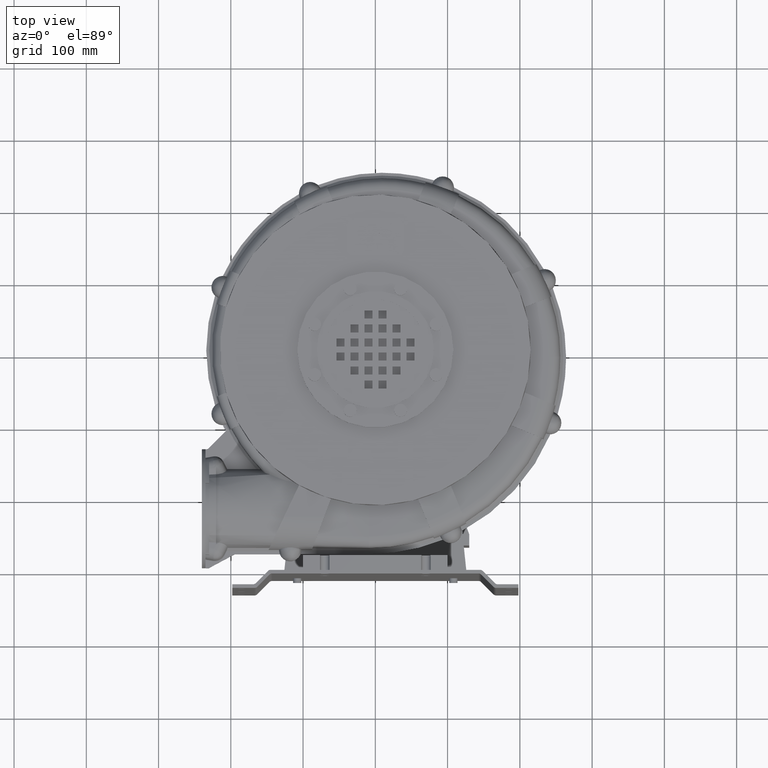
[diagram: clean part render]
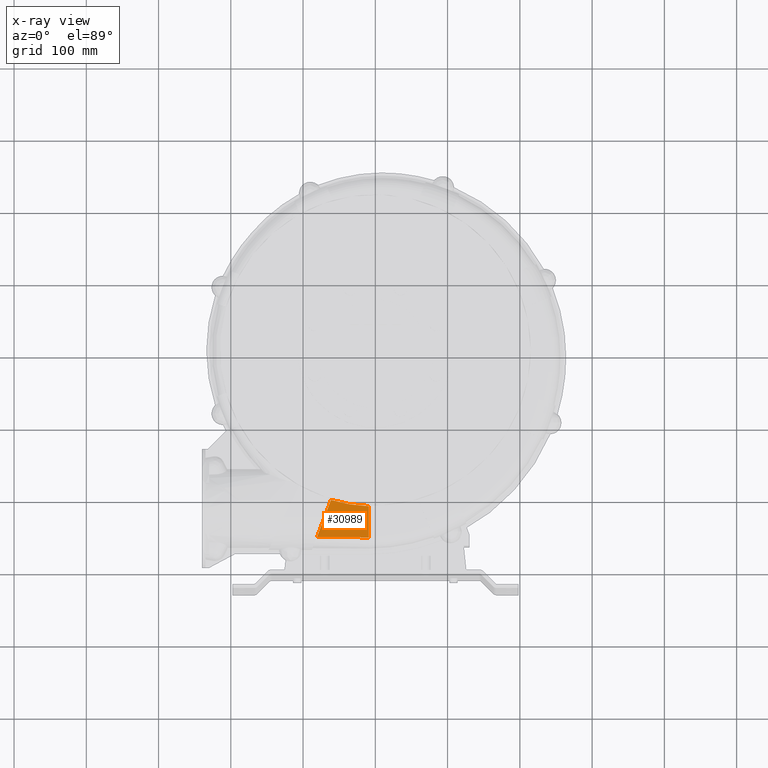
[diagram: x-ray — body ghosted, one internal face saturated and labeled with its STEP entity id]
A machine part, top view, then the same camera in x-ray: the body is ghosted and one INTERNAL B-rep face — a face not visible from any outside direction — is saturated and labeled: STEP entity #30989.
In plain terms, the highlighted face is a freeform B-spline surface patch.
Its self-contained STEP definition (entity closure, byte-faithful):
#18352=CARTESIAN_POINT('',(-61.390037439153666,-206.04917690497905,21.312878041179886));
#18353=VERTEX_POINT('',#18352);
#18360=CARTESIAN_POINT('',(-80.68507924009819,-257.37279114302817,24.916333366254815));
#18361=VERTEX_POINT('',#18360);
#18362=CARTESIAN_POINT('',(-80.685079240098162,-257.37279114302817,24.916333366254833));
#18363=CARTESIAN_POINT('',(-74.100086083586646,-239.85711784148356,20.779113003271384));
#18364=CARTESIAN_POINT('',(-67.42627874976462,-222.1052043378094,20.457500015882637));
#18365=CARTESIAN_POINT('',(-61.390037439153659,-206.04917690497905,21.312878041179882));
#18366=B_SPLINE_CURVE_WITH_KNOTS('',3,(#18362,#18363,#18364,#18365),.UNSPECIFIED.,.F.,.U.,(4,4),(-5.192092827405246,-0.050013875929203),.UNSPECIFIED.);
#18367=EDGE_CURVE('',#18361,#18353,#18366,.T.);
#18915=CARTESIAN_POINT('',(-8.999999999999497,-214.811545313561,23.500000000000618));
#18916=VERTEX_POINT('',#18915);
#18924=CARTESIAN_POINT('',(-61.390037439132726,-206.0491769049853,21.312878041180497));
#18925=CARTESIAN_POINT('',(-57.28014769557344,-207.27367238231577,21.434577966532714));
#18926=CARTESIAN_POINT('',(-53.051670181341251,-208.39967420215558,21.586723933895122));
#18927=CARTESIAN_POINT('',(-35.67865631570983,-212.44042389578004,22.270198577986893));
#18928=CARTESIAN_POINT('',(-22.385474294809775,-214.25073156177945,22.894327146048642));
#18929=CARTESIAN_POINT('',(-8.999999999999496,-214.81154531356097,23.500000000000604));
#18930=B_SPLINE_CURVE_WITH_KNOTS('',3,(#18924,#18925,#18926,#18927,#18928,#18929),.UNSPECIFIED.,.F.,.U.,(4,2,4),(-5.365241149305022,-4.02327039099419,0.0),.UNSPECIFIED.);
#18931=EDGE_CURVE('',#18353,#18916,#18930,.T.);
#22313=CARTESIAN_POINT('',(-8.999999999999403,-258.00000000000017,23.500000000000743));
#22314=VERTEX_POINT('',#22313);
#22635=CARTESIAN_POINT('',(-8.999999999999421,-250.56820620525312,23.500000000000718));
#22636=VERTEX_POINT('',#22635);
#22637=CARTESIAN_POINT('',(-8.999999999999421,-250.56820620525309,23.500000000000721));
#22638=DIRECTION('',(0.0,-1.0,0.0));
#22639=VECTOR('',#22638,7.431793794747023);
#22640=LINE('',#22637,#22639);
#22641=EDGE_CURVE('',#22636,#22314,#22640,.T.);
#22643=CARTESIAN_POINT('',(-8.999999999999481,-218.25902043214631,23.500000000000625));
#22644=VERTEX_POINT('',#22643);
#22645=CARTESIAN_POINT('',(-8.999999999999492,-218.25902043214631,23.500000000000622));
#22646=DIRECTION('',(0.0,-1.0,0.0));
#22647=VECTOR('',#22646,32.309185773106776);
#22648=LINE('',#22645,#22647);
#22649=EDGE_CURVE('',#22644,#22636,#22648,.T.);
#22651=CARTESIAN_POINT('',(-8.99999999999949,-218.25902043214631,23.500000000000629));
#22652=DIRECTION('',(0.0,1.0,0.0));
#22653=VECTOR('',#22652,3.447475118585317);
#22654=LINE('',#22651,#22653);
#22655=EDGE_CURVE('',#22644,#18916,#22654,.T.);
#25155=CARTESIAN_POINT('',(-8.999999999999403,-257.99999999988052,23.500000000488654));
#25156=CARTESIAN_POINT('',(-32.895026413365656,-257.7909303065594,23.972111312199832));
#25157=CARTESIAN_POINT('',(-56.790052826731944,-257.58186082044222,24.444222095250584));
#25158=CARTESIAN_POINT('',(-80.685079240098162,-257.37279115652552,24.916333331939235));
#25159=B_SPLINE_CURVE_WITH_KNOTS('',3,(#25155,#25156,#25157,#25158),.UNSPECIFIED.,.F.,.U.,(4,4),(0.0,0.324366874389587),.UNSPECIFIED.);
#25160=EDGE_CURVE('',#22314,#18361,#25159,.T.);
#30960=CARTESIAN_POINT('',(-8.99999999999952,-204.79098923531058,23.500000000000568));
#30961=CARTESIAN_POINT('',(-8.999999999999504,-212.39227648740911,23.500000000000597));
#30962=CARTESIAN_POINT('',(-8.999999999999465,-230.12861340897231,23.500000000000657));
#30963=CARTESIAN_POINT('',(-8.999999999999426,-247.86495033053552,23.500000000000711));
#30964=CARTESIAN_POINT('',(-8.999999999999403,-258.00000000000017,23.500000000000746));
#30965=CARTESIAN_POINT('',(-32.900668256915282,-205.32421687051004,22.50377308307543));
#30966=CARTESIAN_POINT('',(-32.900668256915253,-212.86448985659433,22.373218897419036));
#30967=CARTESIAN_POINT('',(-32.90066825691526,-230.51960642931263,22.41961398022854));
#30968=CARTESIAN_POINT('',(-32.900668256915175,-247.99217679237404,23.276102204280615));
#30969=CARTESIAN_POINT('',(-32.900668256915168,-257.79088101767923,23.972222592022433));
#30970=CARTESIAN_POINT('',(-56.801336513831075,-205.85744450570951,21.507546166150288));
#30971=CARTESIAN_POINT('',(-56.801336513831089,-213.33764503983912,21.247173339102577));
#30972=CARTESIAN_POINT('',(-56.801336513830947,-230.91148913234608,21.337317534863129));
#30973=CARTESIAN_POINT('',(-56.801336513830989,-248.11594853780889,23.058290219812637));
#30974=CARTESIAN_POINT('',(-56.801336513830947,-257.58176203535822,24.444445184044127));
#30975=CARTESIAN_POINT('',(-80.702004770746839,-206.39067214090898,20.511319249225149));
#30976=CARTESIAN_POINT('',(-80.702004770746811,-213.80985840902434,20.12039223652102));
#30977=CARTESIAN_POINT('',(-80.702004770746782,-231.30248215268639,20.256931515091008));
#30978=CARTESIAN_POINT('',(-80.702004770746726,-248.24317499964741,22.834392424092542));
#30979=CARTESIAN_POINT('',(-80.702004770746711,-257.37264305303722,24.916667776065815));
#30980=B_SPLINE_SURFACE_WITH_KNOTS('',3,3,((#30960,#30965,#30970,#30975),(#30961,#30966,#30971,#30976),(#30962,#30967,#30972,#30977),(#30963,#30968,#30973,#30978),(#30964,#30969,#30974,#30979)),.UNSPECIFIED.,.F.,.F.,.F.,(4,1,4),(4,4),(0.433946693992664,0.676540967995808,1.0),(0.0,0.324443460501119),.UNSPECIFIED.);
#30981=ORIENTED_EDGE('',*,*,#18367,.T.);
#30982=ORIENTED_EDGE('',*,*,#18931,.T.);
#30983=ORIENTED_EDGE('',*,*,#22655,.F.);
#30984=ORIENTED_EDGE('',*,*,#22649,.T.);
#30985=ORIENTED_EDGE('',*,*,#22641,.T.);
#30986=ORIENTED_EDGE('',*,*,#25160,.T.);
#30987=EDGE_LOOP('',(#30981,#30982,#30983,#30984,#30985,#30986));
#30988=FACE_OUTER_BOUND('',#30987,.T.);
#30989=ADVANCED_FACE('',(#30988),#30980,.T.);